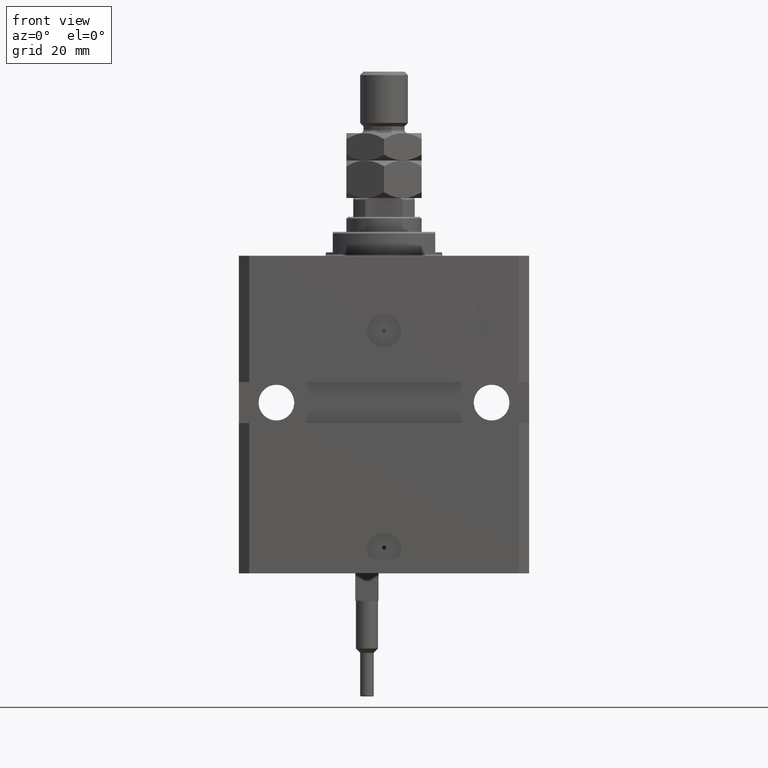
[diagram: clean part render]
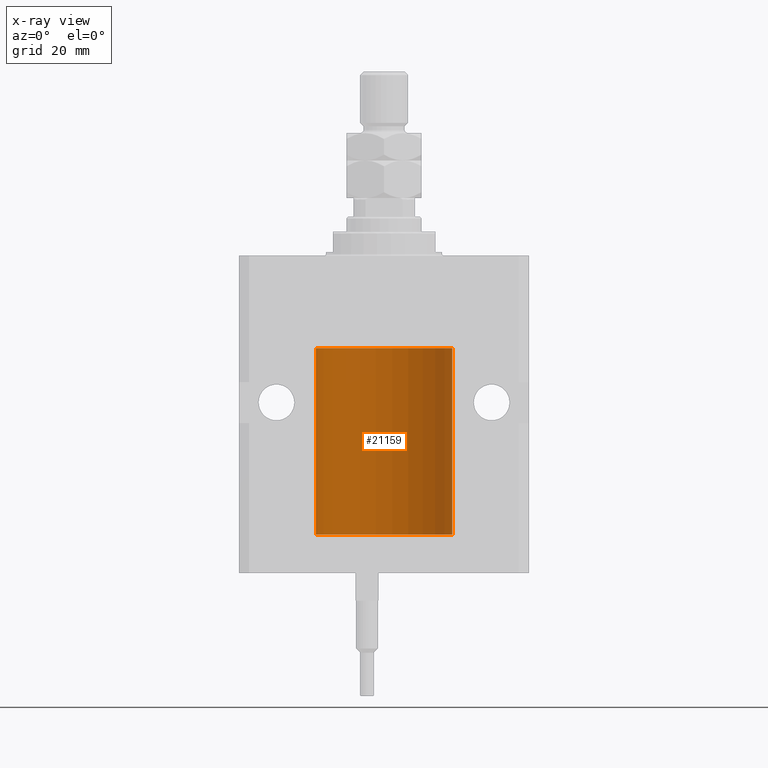
[diagram: x-ray — body ghosted, one internal face saturated and labeled with its STEP entity id]
A machine part, front view, then the same camera in x-ray: the body is ghosted and one INTERNAL B-rep face — a face not visible from any outside direction — is saturated and labeled: STEP entity #21159.
In plain terms, the highlighted cylindrical surface (partial cylindrical patch) has radius 20 mm, axis along (0, 0, 1).
Its self-contained STEP definition (entity closure, byte-faithful):
#938 = CARTESIAN_POINT ( 'NONE',  ( 19.99769474220011034, 0.3253030616682413001, -78.44140633897630721 ) ) ;
#1218 = DIRECTION ( 'NONE',  ( 1.000000000000000000, 0.000000000000000000, 0.000000000000000000 ) ) ;
#1643 = EDGE_CURVE ( 'NONE', #36602, #27631, #15373, .T. ) ;
#2208 = EDGE_CURVE ( 'NONE', #33910, #12985, #17641, .T. ) ;
#3923 = ORIENTED_EDGE ( 'NONE', *, *, #1643, .T. ) ;
#4035 = CARTESIAN_POINT ( 'NONE',  ( 20.00000000000000000, 0.000000000000000000, -27.10000000000000142 ) ) ;
#4260 = CARTESIAN_POINT ( 'NONE',  ( 0.000000000000000000, 0.000000000000000000, -27.10000000000000142 ) ) ;
#5498 = VERTEX_POINT ( 'NONE', #49543 ) ;
#5648 = ORIENTED_EDGE ( 'NONE', *, *, #2208, .F. ) ;
#7665 = VECTOR ( 'NONE', #11692, 1000.000000000000000 ) ;
#9649 = CYLINDRICAL_SURFACE ( 'NONE', #21577, 20.00000000000000000 ) ;
#9805 = ORIENTED_EDGE ( 'NONE', *, *, #11890, .T. ) ;
#10020 = ORIENTED_EDGE ( 'NONE', *, *, #10781, .T. ) ;
#10436 = CARTESIAN_POINT ( 'NONE',  ( 19.99023198964909298, 0.6250000000081574747, -78.99999999999911893 ) ) ;
#10781 = EDGE_CURVE ( 'NONE', #5498, #42158, #46082, .T. ) ;
#11237 = DIRECTION ( 'NONE',  ( -0.000000000000000000, -0.000000000000000000, 1.000000000000000000 ) ) ;
#11480 = VECTOR ( 'NONE', #11237, 1000.000000000000000 ) ;
#11585 = DIRECTION ( 'NONE',  ( 0.000000000000000000, 0.000000000000000000, 1.000000000000000000 ) ) ;
#11692 = DIRECTION ( 'NONE',  ( -0.000000000000000000, -0.000000000000000000, 1.000000000000000000 ) ) ;
#11704 = VERTEX_POINT ( 'NONE', #36356 ) ;
#11890 = EDGE_CURVE ( 'NONE', #42158, #12985, #29468, .T. ) ;
#11967 = ORIENTED_EDGE ( 'NONE', *, *, #41853, .T. ) ;
#12777 = CARTESIAN_POINT ( 'NONE',  ( 20.00000000000010303, 3.555666352936568165E-13, -78.37499999999667466 ) ) ;
#12985 = VERTEX_POINT ( 'NONE', #26667 ) ;
#15373 = B_SPLINE_CURVE_WITH_KNOTS ( 'NONE', 3,
 ( #15826, #43650, #19878, #16571, #23672, #35800, #27464, #35055 ),
 .UNSPECIFIED., .F., .F.,
 ( 4, 2, 2, 4 ),
 ( 3.944467879762244826E-18, 0.0002443247335684012008, 0.0004886494671367983900, 0.0009772989342736221503 ),
 .UNSPECIFIED. ) ;
#15453 = CARTESIAN_POINT ( 'NONE',  ( 20.00000000000000000, 0.000000000000000000, -81.60000000000000853 ) ) ;
#15826 = CARTESIAN_POINT ( 'NONE',  ( 20.00000000000000000, -4.058908006348821872E-15, -79.62500000000000000 ) ) ;
#16308 = CARTESIAN_POINT ( 'NONE',  ( 19.99023198964936299, 0.6249999999995806688, -78.83696384779808852 ) ) ;
#16571 = CARTESIAN_POINT ( 'NONE',  ( 19.99766100389833312, 0.3150982863324784944, -79.54594438241281296 ) ) ;
#16704 = FACE_OUTER_BOUND ( 'NONE', #47626, .T. ) ;
#17641 = LINE ( 'NONE', #22472, #36955 ) ;
#19878 = CARTESIAN_POINT ( 'NONE',  ( 19.99947351343144319, 0.1636818329565372654, -79.60872855715646779 ) ) ;
#20497 = CARTESIAN_POINT ( 'NONE',  ( 0.000000000000000000, 0.000000000000000000, -81.60000000000000853 ) ) ;
#20519 = EDGE_CURVE ( 'NONE', #11704, #33910, #38527, .T. ) ;
#21159 = ADVANCED_FACE ( 'NONE', ( #16704 ), #9649, .F. ) ;
#21577 = AXIS2_PLACEMENT_3D ( 'NONE', #20497, #24302, #39740 ) ;
#22472 = CARTESIAN_POINT ( 'NONE',  ( -20.00000000000000000, 2.449293598294706513E-15, -81.60000000000000853 ) ) ;
#23672 = CARTESIAN_POINT ( 'NONE',  ( 19.99638788807192924, 0.3844440352705359998, -79.49948058986481669 ) ) ;
#24302 = DIRECTION ( 'NONE',  ( -0.000000000000000000, -0.000000000000000000, 1.000000000000000000 ) ) ;
#24783 = AXIS2_PLACEMENT_3D ( 'NONE', #39859, #42923, #1218 ) ;
#25419 = CARTESIAN_POINT ( 'NONE',  ( 20.00000000000000000, -4.058908006348821872E-15, -79.62500000000000000 ) ) ;
#25499 = DIRECTION ( 'NONE',  ( -0.000000000000000000, -0.000000000000000000, 1.000000000000000000 ) ) ;
#26667 = CARTESIAN_POINT ( 'NONE',  ( -20.00000000000000000, 2.449293598294706513E-15, -27.10000000000000142 ) ) ;
#27464 = CARTESIAN_POINT ( 'NONE',  ( 19.99023198964934167, 0.6250000000002757794, -79.16311014829327064 ) ) ;
#27631 = VERTEX_POINT ( 'NONE', #10436 ) ;
#29468 = CIRCLE ( 'NONE', #31098, 20.00000000000000000 ) ;
#30671 = LINE ( 'NONE', #37771, #11480 ) ;
#31098 = AXIS2_PLACEMENT_3D ( 'NONE', #4260, #11585, #34821 ) ;
#33910 = VERTEX_POINT ( 'NONE', #36617 ) ;
#34821 = DIRECTION ( 'NONE',  ( 1.000000000000000000, 0.000000000000000000, 0.000000000000000000 ) ) ;
#35055 = CARTESIAN_POINT ( 'NONE',  ( 19.99023198964909298, 0.6250000000081574747, -78.99999999999911893 ) ) ;
#35541 = CARTESIAN_POINT ( 'NONE',  ( 19.99023198964909298, 0.6250000000081574747, -78.99999999999911893 ) ) ;
#35800 = CARTESIAN_POINT ( 'NONE',  ( 19.99256353007439202, 0.5574106582031174151, -79.32639035180115172 ) ) ;
#36356 = CARTESIAN_POINT ( 'NONE',  ( 20.00000000000000000, 0.000000000000000000, -81.60000000000000853 ) ) ;
#36602 = VERTEX_POINT ( 'NONE', #25419 ) ;
#36617 = CARTESIAN_POINT ( 'NONE',  ( -20.00000000000000000, 2.449293598294706513E-15, -81.60000000000000853 ) ) ;
#36955 = VECTOR ( 'NONE', #25499, 1000.000000000000000 ) ;
#37771 = CARTESIAN_POINT ( 'NONE',  ( 20.00000000000000000, 0.000000000000000000, -81.60000000000000853 ) ) ;
#38527 = CIRCLE ( 'NONE', #24783, 20.00000000000000000 ) ;
#39740 = DIRECTION ( 'NONE',  ( 1.000000000000000000, 0.000000000000000000, 0.000000000000000000 ) ) ;
#39859 = CARTESIAN_POINT ( 'NONE',  ( 0.000000000000000000, 0.000000000000000000, -81.60000000000000853 ) ) ;
#41853 = EDGE_CURVE ( 'NONE', #11704, #36602, #30671, .T. ) ;
#42158 = VERTEX_POINT ( 'NONE', #4035 ) ;
#42923 = DIRECTION ( 'NONE',  ( 0.000000000000000000, 0.000000000000000000, 1.000000000000000000 ) ) ;
#43650 = CARTESIAN_POINT ( 'NONE',  ( 19.99999999999999645, 0.08261455565447825555, -79.62499999999997158 ) ) ;
#43771 = ORIENTED_EDGE ( 'NONE', *, *, #49790, .T. ) ;
#46082 = LINE ( 'NONE', #15453, #7665 ) ;
#46254 = B_SPLINE_CURVE_WITH_KNOTS ( 'NONE', 3,
 ( #35541, #16308, #47424, #938, #47177, #12777 ),
 .UNSPECIFIED., .F., .F.,
 ( 4, 2, 4 ),
 ( 0.0009772989342736221503, 0.001465726722058849005, 0.001954154509844075859 ),
 .UNSPECIFIED. ) ;
#47177 = CARTESIAN_POINT ( 'NONE',  ( 19.99999999999999645, 0.1631318418333158327, -78.37500000000015632 ) ) ;
#47424 = CARTESIAN_POINT ( 'NONE',  ( 19.99253733128256627, 0.5586305947779004466, -78.67476036735259015 ) ) ;
#47626 = EDGE_LOOP ( 'NONE', ( #5648, #47695, #11967, #3923, #43771, #10020, #9805 ) ) ;
#47695 = ORIENTED_EDGE ( 'NONE', *, *, #20519, .F. ) ;
#49543 = CARTESIAN_POINT ( 'NONE',  ( 20.00000000000010303, 3.555666352936568165E-13, -78.37499999999667466 ) ) ;
#49790 = EDGE_CURVE ( 'NONE', #27631, #5498, #46254, .T. ) ;